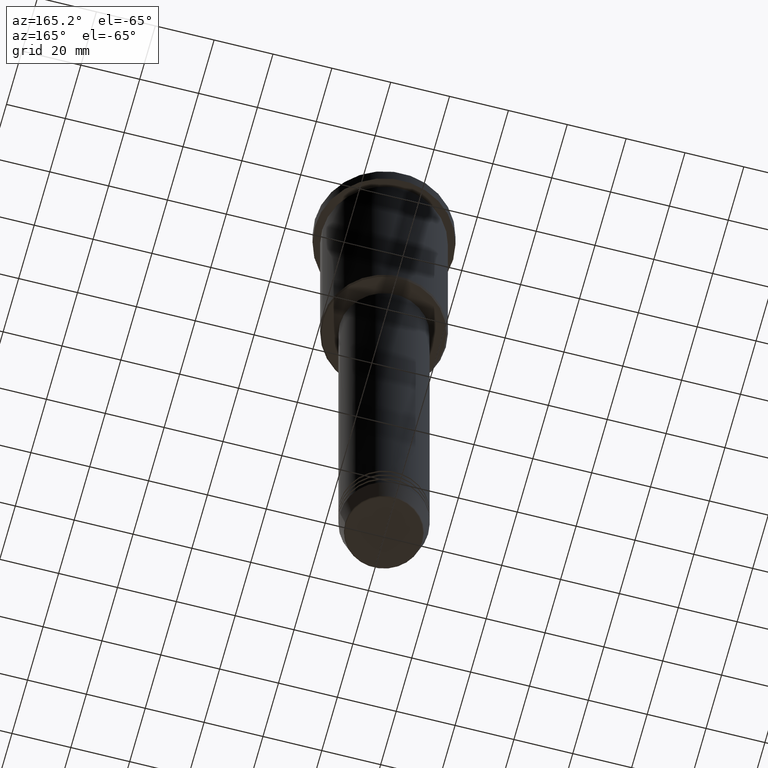
[diagram: clean part render]
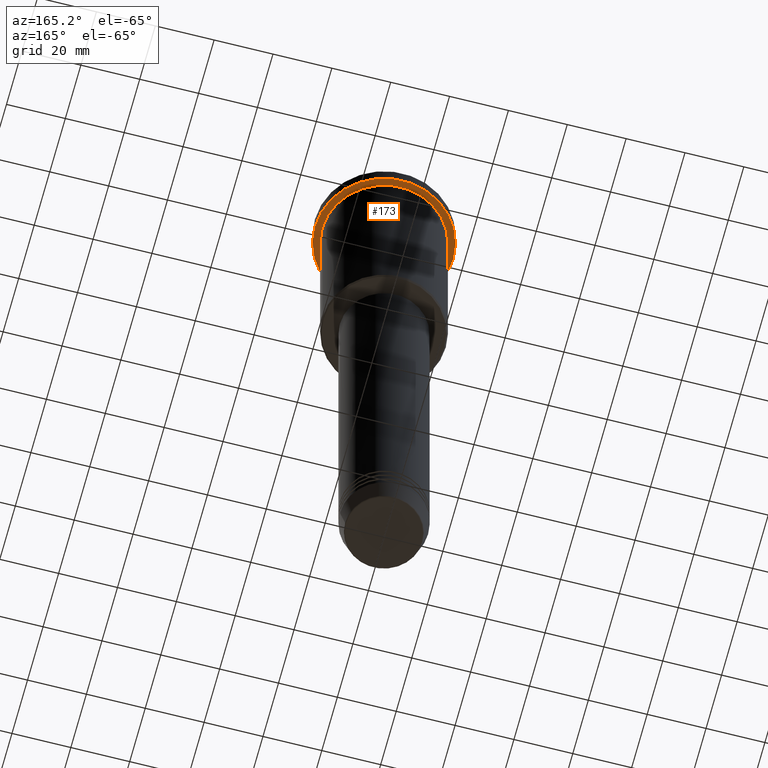
[diagram: same view with one face highlighted and labeled with its STEP entity id]
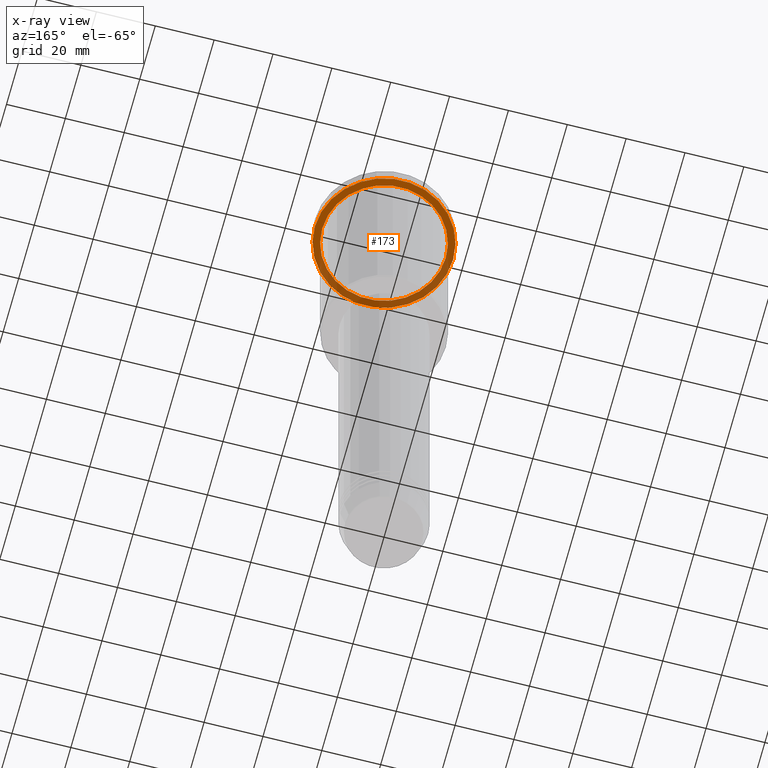
[diagram: x-ray of the same camera — body ghosted, the highlighted face saturated]
A machine part, auxiliary view. The second image highlights one B-rep face of the part: STEP entity #173.
The next image is the same camera in x-ray: the body ghosted, the highlighted face saturated — about 39% of this face is hidden behind the body in this view.
In plain terms, the highlighted planar face has unit normal (0, 0, -1).
Its self-contained STEP definition (entity closure, byte-faithful):
#41 = CARTESIAN_POINT ( 'NONE',  ( 0.000000000000000000, 23.50000000000000000, -5.999999999999994671 ) ) ;
#86 = AXIS2_PLACEMENT_3D ( 'NONE', #280, #364, #712 ) ;
#115 = PLANE ( 'NONE',  #895 ) ;
#164 = ORIENTED_EDGE ( 'NONE', *, *, #941, .T. ) ;
#173 = ADVANCED_FACE ( 'NONE', ( #1051, #1030 ), #115, .T. ) ;
#218 = VERTEX_POINT ( 'NONE', #819 ) ;
#232 = AXIS2_PLACEMENT_3D ( 'NONE', #928, #481, #913 ) ;
#252 = EDGE_LOOP ( 'NONE', ( #509, #532 ) ) ;
#279 = CARTESIAN_POINT ( 'NONE',  ( 0.000000000000000000, 0.000000000000000000, -5.999999999999994671 ) ) ;
#280 = CARTESIAN_POINT ( 'NONE',  ( 0.000000000000000000, 0.000000000000000000, -5.999999999999994671 ) ) ;
#317 = CARTESIAN_POINT ( 'NONE',  ( -21.00000000000000000, 0.000000000000000000, -5.999999999999994671 ) ) ;
#323 = VERTEX_POINT ( 'NONE', #963 ) ;
#364 = DIRECTION ( 'NONE',  ( -0.000000000000000000, -0.000000000000000000, 1.000000000000000000 ) ) ;
#369 = AXIS2_PLACEMENT_3D ( 'NONE', #1098, #1013, #472 ) ;
#379 = CARTESIAN_POINT ( 'NONE',  ( 23.50000000000000000, 0.000000000000000000, -5.999999999999994671 ) ) ;
#442 = EDGE_CURVE ( 'NONE', #480, #218, #724, .T. ) ;
#472 = DIRECTION ( 'NONE',  ( -1.000000000000000000, 0.000000000000000000, 0.000000000000000000 ) ) ;
#476 = CIRCLE ( 'NONE', #86, 23.50000000000000000 ) ;
#480 = VERTEX_POINT ( 'NONE', #379 ) ;
#481 = DIRECTION ( 'NONE',  ( -0.000000000000000000, -0.000000000000000000, 1.000000000000000000 ) ) ;
#509 = ORIENTED_EDGE ( 'NONE', *, *, #442, .F. ) ;
#532 = ORIENTED_EDGE ( 'NONE', *, *, #749, .F. ) ;
#554 = DIRECTION ( 'NONE',  ( 0.000000000000000000, 0.000000000000000000, -1.000000000000000000 ) ) ;
#587 = EDGE_CURVE ( 'NONE', #690, #323, #1103, .T. ) ;
#642 = DIRECTION ( 'NONE',  ( -0.000000000000000000, -0.000000000000000000, 1.000000000000000000 ) ) ;
#690 = VERTEX_POINT ( 'NONE', #317 ) ;
#695 = EDGE_LOOP ( 'NONE', ( #996, #164 ) ) ;
#712 = DIRECTION ( 'NONE',  ( 1.000000000000000000, 0.000000000000000000, 0.000000000000000000 ) ) ;
#724 = CIRCLE ( 'NONE', #780, 23.50000000000000000 ) ;
#741 = DIRECTION ( 'NONE',  ( -1.000000000000000000, 0.000000000000000000, -0.000000000000000000 ) ) ;
#749 = EDGE_CURVE ( 'NONE', #218, #480, #476, .T. ) ;
#780 = AXIS2_PLACEMENT_3D ( 'NONE', #279, #642, #985 ) ;
#819 = CARTESIAN_POINT ( 'NONE',  ( -23.50000000000000000, 2.877919977996280320E-15, -5.999999999999994671 ) ) ;
#895 = AXIS2_PLACEMENT_3D ( 'NONE', #41, #554, #741 ) ;
#913 = DIRECTION ( 'NONE',  ( -1.000000000000000000, 0.000000000000000000, 0.000000000000000000 ) ) ;
#928 = CARTESIAN_POINT ( 'NONE',  ( 0.000000000000000000, 0.000000000000000000, -5.999999999999994671 ) ) ;
#941 = EDGE_CURVE ( 'NONE', #323, #690, #1104, .T. ) ;
#963 = CARTESIAN_POINT ( 'NONE',  ( 21.00000000000000000, 2.571758278209441661E-15, -5.999999999999994671 ) ) ;
#985 = DIRECTION ( 'NONE',  ( 1.000000000000000000, 0.000000000000000000, 0.000000000000000000 ) ) ;
#996 = ORIENTED_EDGE ( 'NONE', *, *, #587, .T. ) ;
#1013 = DIRECTION ( 'NONE',  ( -0.000000000000000000, -0.000000000000000000, 1.000000000000000000 ) ) ;
#1030 = FACE_OUTER_BOUND ( 'NONE', #252, .T. ) ;
#1051 = FACE_BOUND ( 'NONE', #695, .T. ) ;
#1098 = CARTESIAN_POINT ( 'NONE',  ( 0.000000000000000000, 0.000000000000000000, -5.999999999999994671 ) ) ;
#1103 = CIRCLE ( 'NONE', #369, 21.00000000000000000 ) ;
#1104 = CIRCLE ( 'NONE', #232, 21.00000000000000000 ) ;